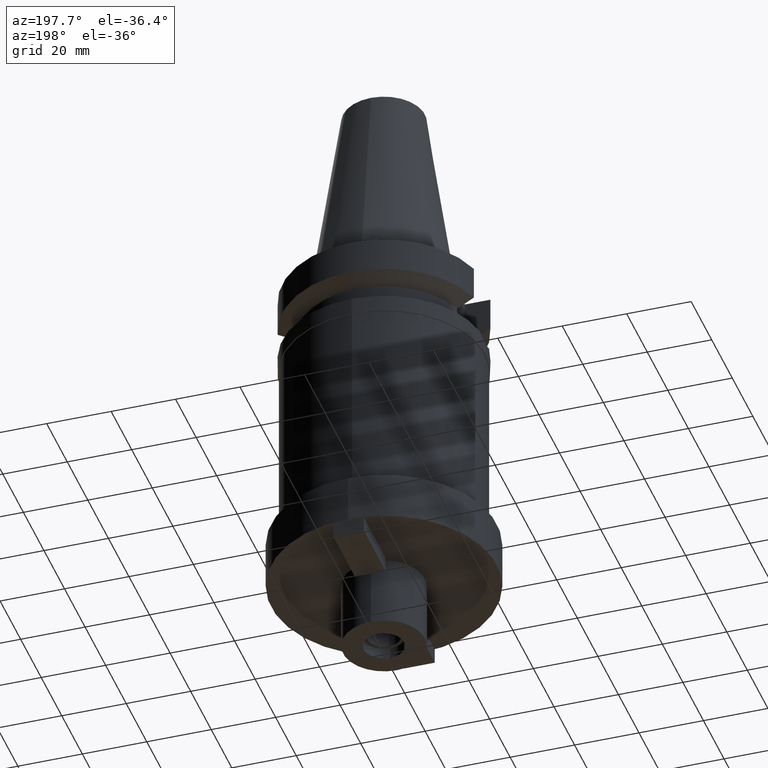
[diagram: clean part render]
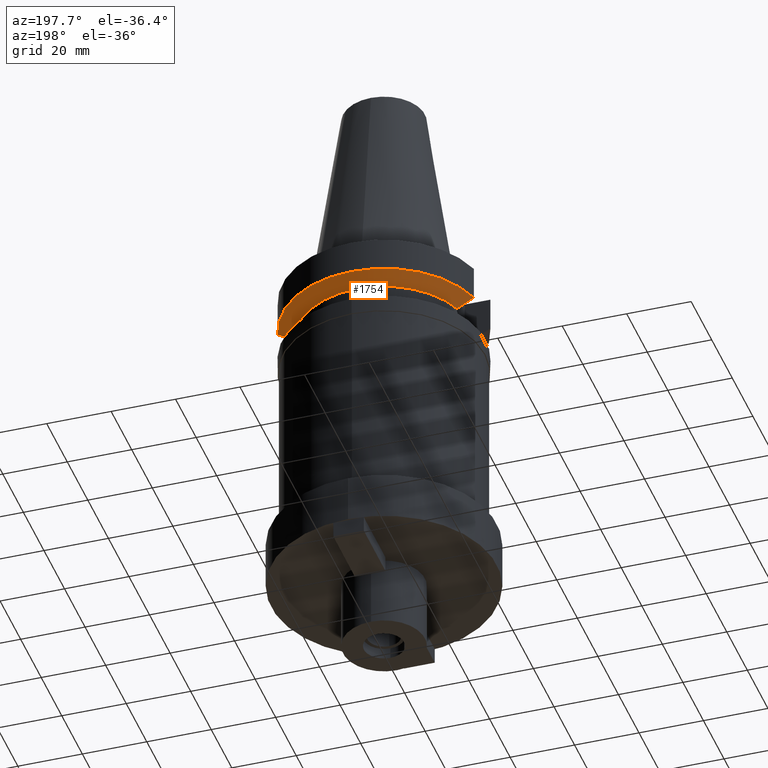
[diagram: same view with one face highlighted and labeled with its STEP entity id]
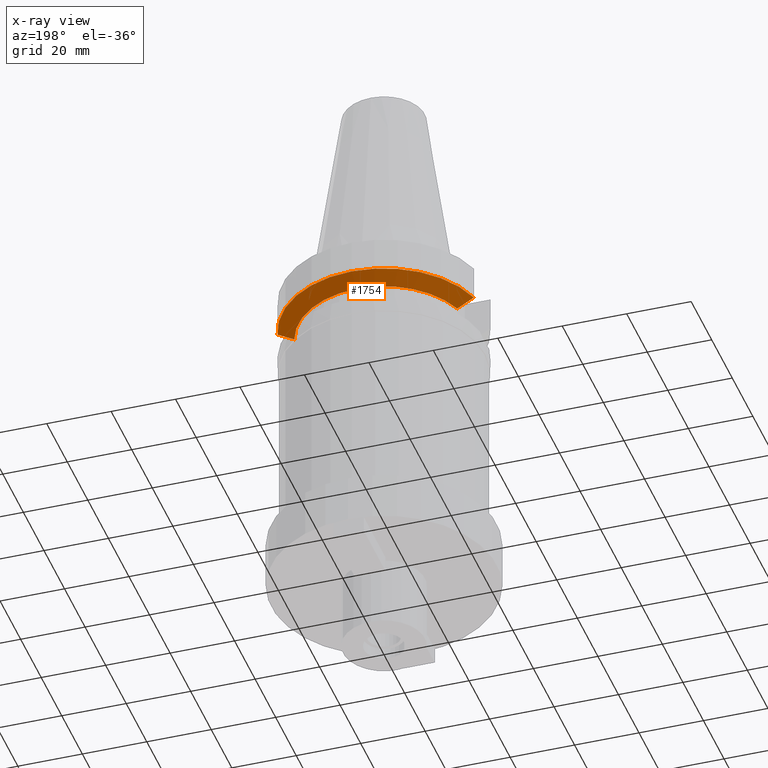
[diagram: x-ray of the same camera — body ghosted, the highlighted face saturated]
A machine part, auxiliary view. The second image highlights one B-rep face of the part: STEP entity #1754.
The next image is the same camera in x-ray: the body ghosted, the highlighted face saturated — about 0% of this face is hidden behind the body in this view.
In plain terms, the highlighted conical surface has half-angle 60 deg.
Its self-contained STEP definition (entity closure, byte-faithful):
#344=CARTESIAN_POINT('',(3.045402291367E1,8.049999277880E0,-1.156551215665E1));
#345=CARTESIAN_POINT('',(2.987645774295E1,8.049999277880E0,-1.188789690695E1));
#346=CARTESIAN_POINT('',(2.872091200124E1,8.049999725814E0,-1.253193851667E1));
#347=CARTESIAN_POINT('',(2.698538663447E1,8.050002042832E0,-1.349404338755E1));
#348=CARTESIAN_POINT('',(2.582730530186E1,8.049995416182E0,-1.413348340670E1));
#349=CARTESIAN_POINT('',(2.524772413109E1,8.049995416182E0,-1.445229202496E1));
#388=CARTESIAN_POINT('',(-2.524772216379E1,8.050001586349E0,-1.445224487751E1));
#389=CARTESIAN_POINT('',(-2.582727361603E1,8.050001586349E0,-1.413345268095E1));
#390=CARTESIAN_POINT('',(-2.698547393620E1,8.049999812181E0,-1.349419203672E1));
#391=CARTESIAN_POINT('',(-2.872100161680E1,8.049998277844E0,-1.253209181128E1));
#392=CARTESIAN_POINT('',(-2.987642831108E1,8.050004143577E0,-1.188786874888E1));
#393=CARTESIAN_POINT('',(-3.045402162750E1,8.050004143577E0,-1.156546832909E1));
#398=CARTESIAN_POINT('',(0.E0,1.065333950388E-14,-1.445225699861E1));
#399=DIRECTION('',(0.E0,0.E0,-1.E0));
#400=DIRECTION('',(-9.527442516822E-1,3.037735849057E-1,0.E0));
#401=AXIS2_PLACEMENT_3D('',#398,#399,#400);
#406=CARTESIAN_POINT('',(0.E0,1.065333950388E-14,-1.445225699861E1));
#407=DIRECTION('',(0.E0,0.E0,-1.E0));
#408=DIRECTION('',(0.E0,1.E0,0.E0));
#409=AXIS2_PLACEMENT_3D('',#406,#407,#408);
#414=CARTESIAN_POINT('',(0.E0,1.065333950388E-14,-1.156550565267E1));
#415=DIRECTION('',(0.E0,0.E0,1.E0));
#416=DIRECTION('',(9.667943721520E-1,2.555555555555E-1,0.E0));
#417=AXIS2_PLACEMENT_3D('',#414,#415,#416);
#422=CARTESIAN_POINT('',(0.E0,1.065333950388E-14,-1.156550565267E1));
#423=DIRECTION('',(0.E0,0.E0,1.E0));
#424=DIRECTION('',(0.E0,1.E0,0.E0));
#425=AXIS2_PLACEMENT_3D('',#422,#423,#424);
#1393=CARTESIAN_POINT('',(-2.524772216379E1,8.050001586349E0,
-1.445224487751E1));
#1394=VERTEX_POINT('',#1393);
#1395=CARTESIAN_POINT('',(2.524772413109E1,8.049995416182E0,-1.445229202496E1));
#1396=VERTEX_POINT('',#1395);
#1397=CARTESIAN_POINT('',(0.E0,2.65E1,-1.445225699861E1));
#1398=VERTEX_POINT('',#1397);
#1429=VERTEX_POINT('',#393);
#1434=VERTEX_POINT('',#344);
#1435=CARTESIAN_POINT('',(0.E0,3.15E1,-1.156550565267E1));
#1436=VERTEX_POINT('',#1435);
#1739=CARTESIAN_POINT('',(0.E0,1.065333950388E-14,-1.300888132564E1));
#1740=DIRECTION('',(0.E0,0.E0,1.E0));
#1741=DIRECTION('',(0.E0,1.E0,0.E0));
#1742=AXIS2_PLACEMENT_3D('',#1739,#1740,#1741);
#1743=CONICAL_SURFACE('',#1742,2.9E1,6.E1);
#1744=ORIENTED_EDGE('',*,*,#1728,.F.);
#1745=ORIENTED_EDGE('',*,*,#1717,.T.);
#1746=ORIENTED_EDGE('',*,*,#1715,.T.);
#1747=ORIENTED_EDGE('',*,*,#1694,.F.);
#1749=ORIENTED_EDGE('',*,*,#1748,.T.);
#1751=ORIENTED_EDGE('',*,*,#1750,.T.);
#1752=EDGE_LOOP('',(#1744,#1745,#1746,#1747,#1749,#1751));
#1753=FACE_OUTER_BOUND('',#1752,.F.);
#350=B_SPLINE_CURVE_WITH_KNOTS('',3,(#344,#345,#346,#347,#348,#349),
.UNSPECIFIED.,.F.,.F.,(4,1,1,4),(0.E0,3.333333333333E-1,6.666666666667E-1,1.E0),
.UNSPECIFIED.);
#394=B_SPLINE_CURVE_WITH_KNOTS('',3,(#388,#389,#390,#391,#392,#393),
.UNSPECIFIED.,.F.,.F.,(4,1,1,4),(0.E0,3.333333333333E-1,6.666666666667E-1,1.E0),
.UNSPECIFIED.);
#402=CIRCLE('',#401,2.65E1);
#410=CIRCLE('',#409,2.65E1);
#418=CIRCLE('',#417,3.15E1);
#426=CIRCLE('',#425,3.15E1);
#1694=EDGE_CURVE('',#1434,#1396,#350,.T.);
#1715=EDGE_CURVE('',#1398,#1396,#410,.T.);
#1717=EDGE_CURVE('',#1394,#1398,#402,.T.);
#1728=EDGE_CURVE('',#1394,#1429,#394,.T.);
#1748=EDGE_CURVE('',#1434,#1436,#418,.T.);
#1750=EDGE_CURVE('',#1436,#1429,#426,.T.);
#1754=ADVANCED_FACE('',(#1753),#1743,.T.);